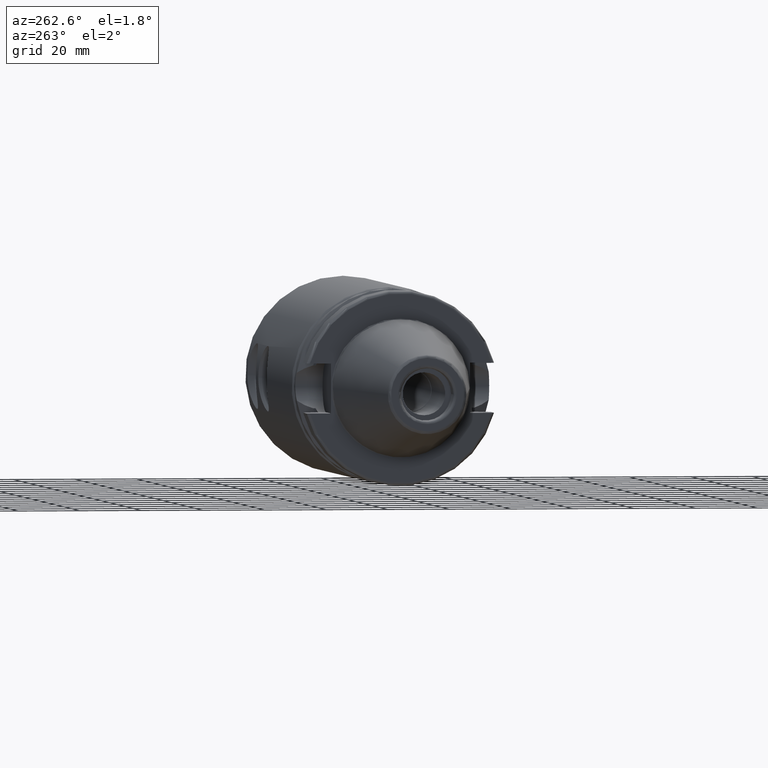
[diagram: clean part render]
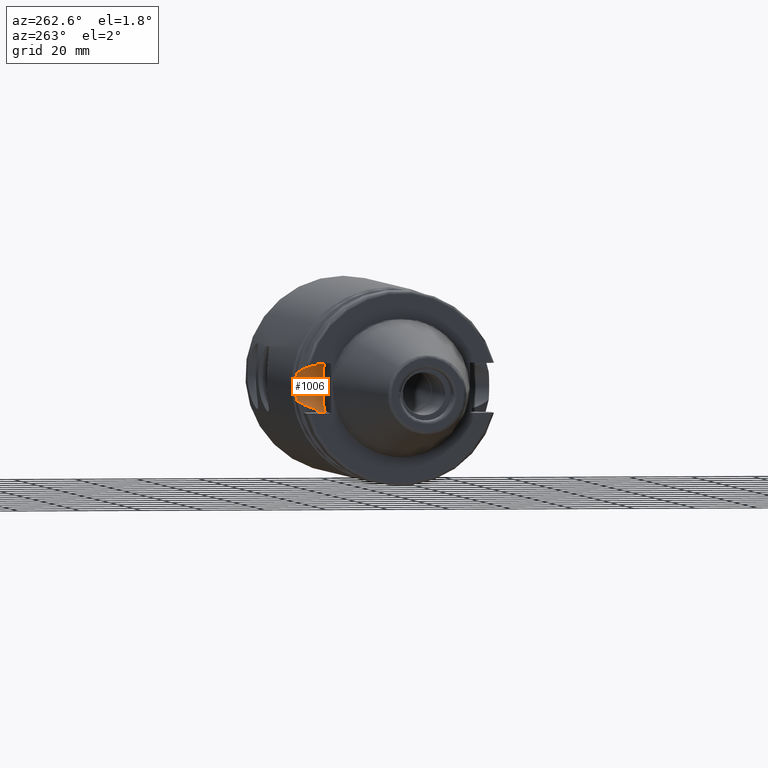
[diagram: same view with one face highlighted and labeled with its STEP entity id]
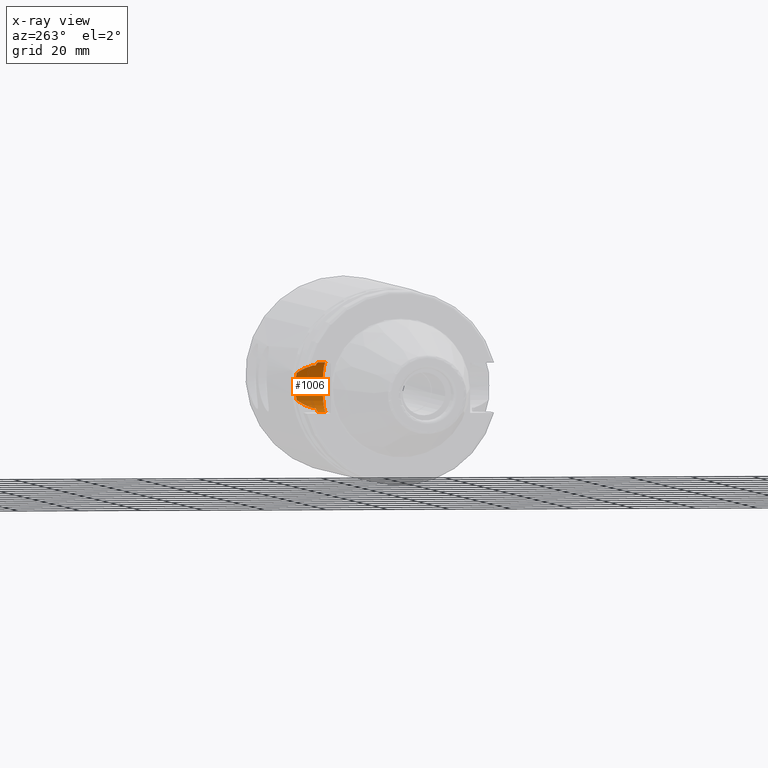
[diagram: x-ray of the same camera — body ghosted, the highlighted face saturated]
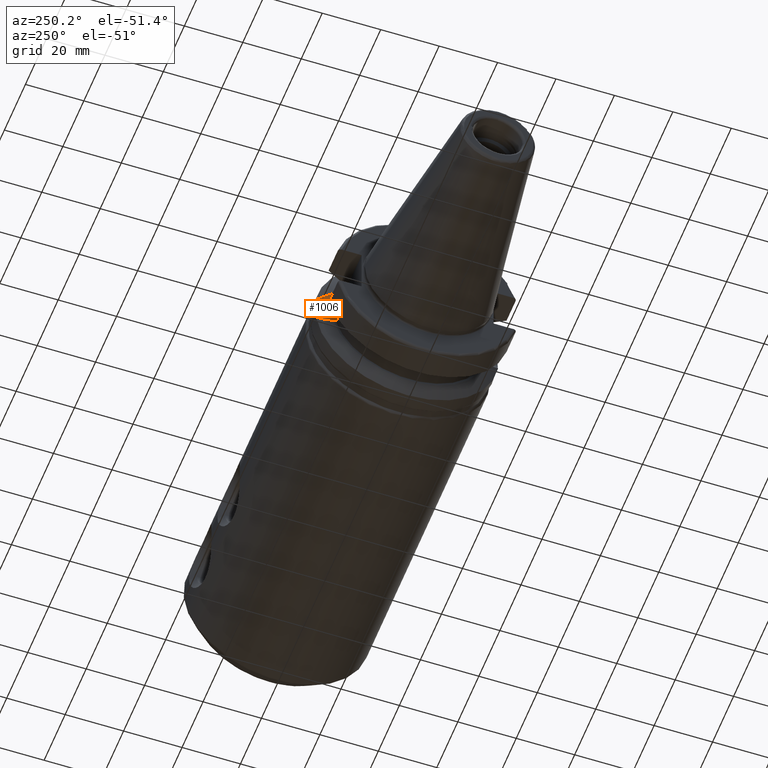
[diagram: same view with one face highlighted and labeled with its STEP entity id]
A machine part, auxiliary view. The second image highlights one B-rep face of the part: STEP entity #1006.
The next image is the same camera in x-ray: the body ghosted, the highlighted face saturated — about 0% of this face is hidden behind the body in this view.
A second angle (auxiliary view) of the same face is appended — the face is thin or edge-on in the first view.
In plain terms, the highlighted cylindrical surface (edge-blend (fillet) strip) has radius 8.05 mm, axis along (0, 1, 0).
Its self-contained STEP definition (entity closure, byte-faithful):
#46=B_SPLINE_CURVE_WITH_KNOTS('',3,(#1766,#1767,#1768,#1769,#1770,#1771,
#1772,#1773,#1774,#1775),.UNSPECIFIED.,.F.,.F.,(4,2,2,2,4),(3.19984995650548,
3.35166149968206,3.65633255521115,3.96100361074024,4.11281515391681),
 .UNSPECIFIED.);
#56=B_SPLINE_CURVE_WITH_KNOTS('',3,(#2297,#2298,#2299,#2300,#2301,#2302),
 .UNSPECIFIED.,.F.,.F.,(4,2,4),(1.4642102789956,1.54570476603972,2.04294020568399),
 .UNSPECIFIED.);
#57=B_SPLINE_CURVE_WITH_KNOTS('',3,(#2312,#2313,#2314,#2315,#2316,#2317),
 .UNSPECIFIED.,.F.,.F.,(4,2,4),(2.44288295924093,2.7482928065289,2.86149131778004),
 .UNSPECIFIED.);
#59=B_SPLINE_CURVE_WITH_KNOTS('',3,(#2353,#2354,#2355,#2356,#2357,#2358),
 .UNSPECIFIED.,.F.,.F.,(4,2,4),(-0.418608358539113,-0.305409847287967,0.),
 .UNSPECIFIED.);
#60=B_SPLINE_CURVE_WITH_KNOTS('',3,(#2361,#2362,#2363,#2364,#2365,#2366),
 .UNSPECIFIED.,.F.,.F.,(4,2,4),(3.12975744792547,3.62699288756974,3.70848737461386),
 .UNSPECIFIED.);
#95=LINE('',#2306,#149);
#99=LINE('',#2347,#153);
#100=LINE('',#2351,#154);
#101=LINE('',#2360,#155);
#149=VECTOR('',#1334,10.);
#153=VECTOR('',#1360,10.);
#154=VECTOR('',#1363,10.);
#155=VECTOR('',#1364,10.);
#182=CYLINDRICAL_SURFACE('',#1125,8.05);
#249=FACE_OUTER_BOUND('',#314,.T.);
#314=EDGE_LOOP('',(#846,#847,#848,#849,#850,#851,#852,#853,#854,#855));
#380=CIRCLE('',#1126,8.05);
#434=VERTEX_POINT('',#1763);
#435=VERTEX_POINT('',#1765);
#471=VERTEX_POINT('',#2295);
#472=VERTEX_POINT('',#2304);
#474=VERTEX_POINT('',#2310);
#479=VERTEX_POINT('',#2346);
#480=VERTEX_POINT('',#2348);
#481=VERTEX_POINT('',#2350);
#482=VERTEX_POINT('',#2352);
#483=VERTEX_POINT('',#2359);
#544=EDGE_CURVE('',#434,#435,#46,.T.);
#597=EDGE_CURVE('',#471,#434,#56,.T.);
#599=EDGE_CURVE('',#472,#471,#95,.T.);
#602=EDGE_CURVE('',#474,#472,#57,.T.);
#611=EDGE_CURVE('',#479,#474,#99,.T.);
#612=EDGE_CURVE('',#480,#479,#380,.T.);
#613=EDGE_CURVE('',#480,#481,#100,.T.);
#614=EDGE_CURVE('',#482,#481,#59,.T.);
#615=EDGE_CURVE('',#483,#482,#101,.T.);
#616=EDGE_CURVE('',#435,#483,#60,.T.);
#846=ORIENTED_EDGE('',*,*,#602,.F.);
#847=ORIENTED_EDGE('',*,*,#611,.F.);
#848=ORIENTED_EDGE('',*,*,#612,.F.);
#849=ORIENTED_EDGE('',*,*,#613,.T.);
#850=ORIENTED_EDGE('',*,*,#614,.F.);
#851=ORIENTED_EDGE('',*,*,#615,.F.);
#852=ORIENTED_EDGE('',*,*,#616,.F.);
#853=ORIENTED_EDGE('',*,*,#544,.F.);
#854=ORIENTED_EDGE('',*,*,#597,.F.);
#855=ORIENTED_EDGE('',*,*,#599,.F.);
#1006=ADVANCED_FACE('',(#249),#182,.F.);
#1125=AXIS2_PLACEMENT_3D('',#2345,#1358,#1359);
#1126=AXIS2_PLACEMENT_3D('',#2349,#1361,#1362);
#1334=DIRECTION('',(0.,1.,0.));
#1358=DIRECTION('center_axis',(0.,1.,0.));
#1359=DIRECTION('ref_axis',(0.,0.,1.));
#1360=DIRECTION('',(0.,1.,0.));
#1361=DIRECTION('center_axis',(0.,1.,0.));
#1362=DIRECTION('ref_axis',(0.,0.,1.));
#1363=DIRECTION('',(0.,1.,0.));
#1364=DIRECTION('',(0.,-1.,0.));
#1763=CARTESIAN_POINT('',(21.6309636926618,31.1782420264945,-4.4907932637046));
#1765=CARTESIAN_POINT('',(21.6309636926618,31.1782420264945,4.4907932637046));
#1766=CARTESIAN_POINT('Ctrl Pts',(21.6309636926618,31.1782420264945,-4.4907932637046));
#1767=CARTESIAN_POINT('Ctrl Pts',(21.92482980253,31.2412125047166,-4.05360796141051));
#1768=CARTESIAN_POINT('Ctrl Pts',(22.1796133812044,31.2997625705024,-3.58065358198869));
#1769=CARTESIAN_POINT('Ctrl Pts',(22.7961189876535,31.445974204441,-2.09580170425552));
#1770=CARTESIAN_POINT('Ctrl Pts',(23.,31.5,-1.01557018509698));
#1771=CARTESIAN_POINT('Ctrl Pts',(23.,31.5,1.01557018509698));
#1772=CARTESIAN_POINT('Ctrl Pts',(22.7961189876535,31.445974204441,2.09580170425552));
#1773=CARTESIAN_POINT('Ctrl Pts',(22.1796133812044,31.2997625705024,3.58065358198869));
#1774=CARTESIAN_POINT('Ctrl Pts',(21.92482980253,31.2412125047166,4.05360796141051));
#1775=CARTESIAN_POINT('Ctrl Pts',(21.6309636926618,31.1782420264945,4.4907932637046));
#2295=CARTESIAN_POINT('',(19.1,26.201311395455,-6.89782574439221));
#2297=CARTESIAN_POINT('Ctrl Pts',(19.1,26.201311395455,-6.89782574439221));
#2298=CARTESIAN_POINT('Ctrl Pts',(19.2210929544554,26.438473693351,-6.82497151762395));
#2299=CARTESIAN_POINT('Ctrl Pts',(19.3406963650697,26.6728819297428,-6.74867108656039));
#2300=CARTESIAN_POINT('Ctrl Pts',(20.1784155384866,28.3157123387484,-6.18231368976925));
#2301=CARTESIAN_POINT('Ctrl Pts',(20.9728756148303,29.8797957262939,-5.46983244373115));
#2302=CARTESIAN_POINT('Ctrl Pts',(21.6309636926618,31.1782420264945,-4.4907932637046));
#2304=CARTESIAN_POINT('',(19.1,25.3793222919762,-6.89782574439221));
#2306=CARTESIAN_POINT('',(19.1,22.6,-6.89782574439221));
#2310=CARTESIAN_POINT('',(14.95,25.0377215417058,-8.05));
#2312=CARTESIAN_POINT('Ctrl Pts',(14.95,25.0377215417058,-8.05));
#2313=CARTESIAN_POINT('Ctrl Pts',(15.9680328242932,25.0377215417058,-8.05));
#2314=CARTESIAN_POINT('Ctrl Pts',(17.0490724969254,25.1063150193149,-7.84520188991776));
#2315=CARTESIAN_POINT('Ctrl Pts',(18.4068260684762,25.2726009715968,-7.28086186600679));
#2316=CARTESIAN_POINT('Ctrl Pts',(18.7623374744972,25.3241080721198,-7.10097664045187));
#2317=CARTESIAN_POINT('Ctrl Pts',(19.1,25.3793222919762,-6.89782574439221));
#2345=CARTESIAN_POINT('Origin',(14.95,22.6,0.));
#2346=CARTESIAN_POINT('',(14.95,22.6,-8.05));
#2347=CARTESIAN_POINT('',(14.95,22.6,-8.05));
#2348=CARTESIAN_POINT('',(14.95,22.6,8.05));
#2349=CARTESIAN_POINT('Origin',(14.95,22.6,0.));
#2350=CARTESIAN_POINT('',(14.95,25.0377215417058,8.05));
#2351=CARTESIAN_POINT('',(14.95,22.6,8.05));
#2352=CARTESIAN_POINT('',(19.1,25.3793222919762,6.89782574439221));
#2353=CARTESIAN_POINT('Ctrl Pts',(19.1,25.3793222919762,6.89782574439221));
#2354=CARTESIAN_POINT('Ctrl Pts',(18.7623374744972,25.3241080721198,7.10097664045187));
#2355=CARTESIAN_POINT('Ctrl Pts',(18.4068260684762,25.2726009715968,7.28086186600679));
#2356=CARTESIAN_POINT('Ctrl Pts',(17.0490724969254,25.1063150193149,7.84520188991776));
#2357=CARTESIAN_POINT('Ctrl Pts',(15.9680328242932,25.0377215417058,8.05));
#2358=CARTESIAN_POINT('Ctrl Pts',(14.95,25.0377215417058,8.05));
#2359=CARTESIAN_POINT('',(19.1,26.201311395455,6.89782574439221));
#2360=CARTESIAN_POINT('',(19.1,22.6,6.89782574439221));
#2361=CARTESIAN_POINT('Ctrl Pts',(21.6309636926618,31.1782420264945,4.4907932637046));
#2362=CARTESIAN_POINT('Ctrl Pts',(20.9728756148303,29.8797957262939,5.46983244373114));
#2363=CARTESIAN_POINT('Ctrl Pts',(20.1784155384866,28.3157123387484,6.18231368976924));
#2364=CARTESIAN_POINT('Ctrl Pts',(19.3406963650697,26.6728819297428,6.74867108656039));
#2365=CARTESIAN_POINT('Ctrl Pts',(19.2210929544554,26.438473693351,6.82497151762395));
#2366=CARTESIAN_POINT('Ctrl Pts',(19.1,26.201311395455,6.89782574439221));